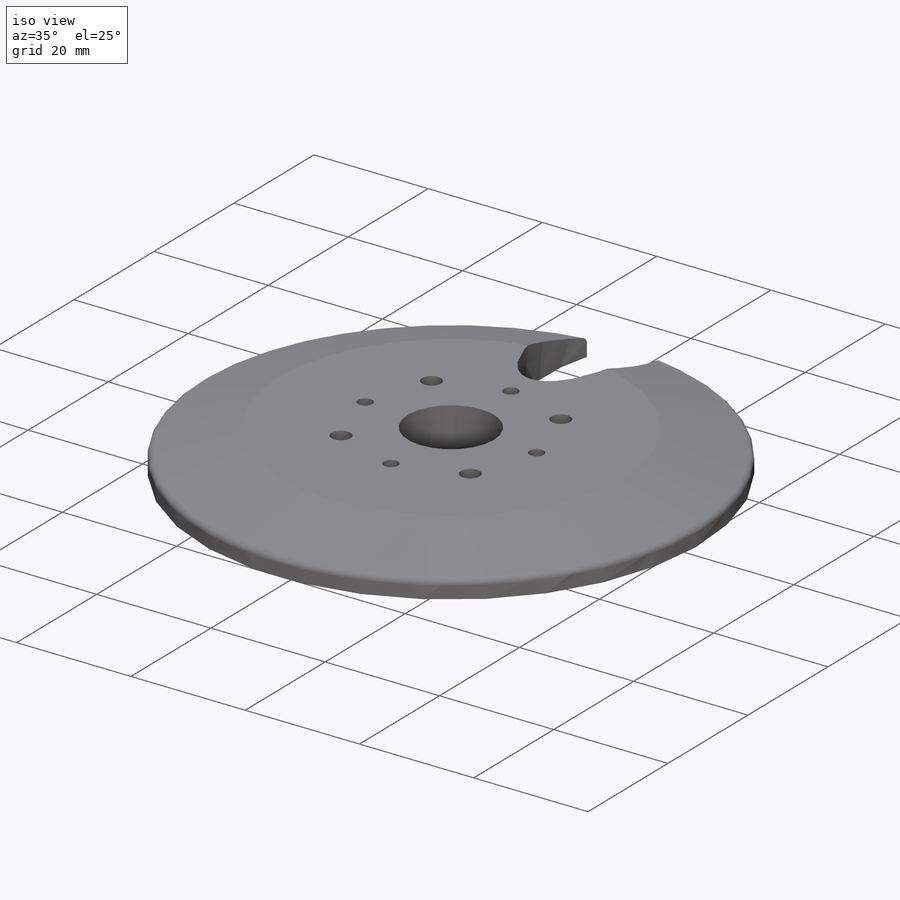
[diagram: iso view]
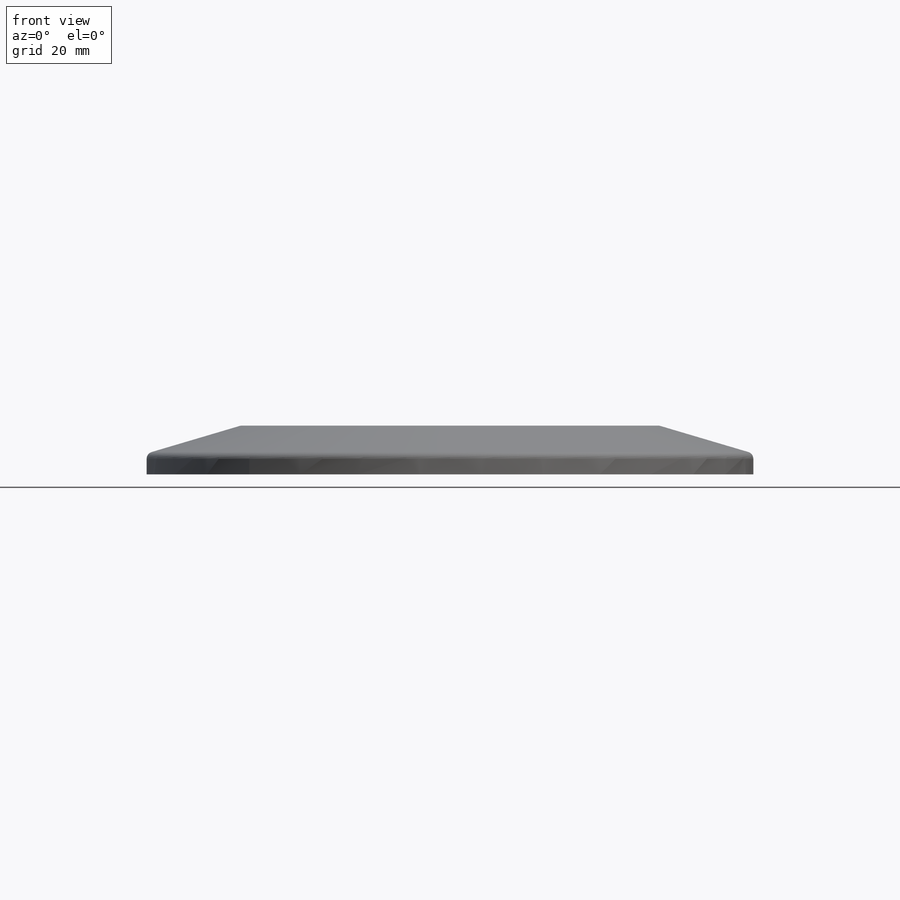
[diagram: front view]
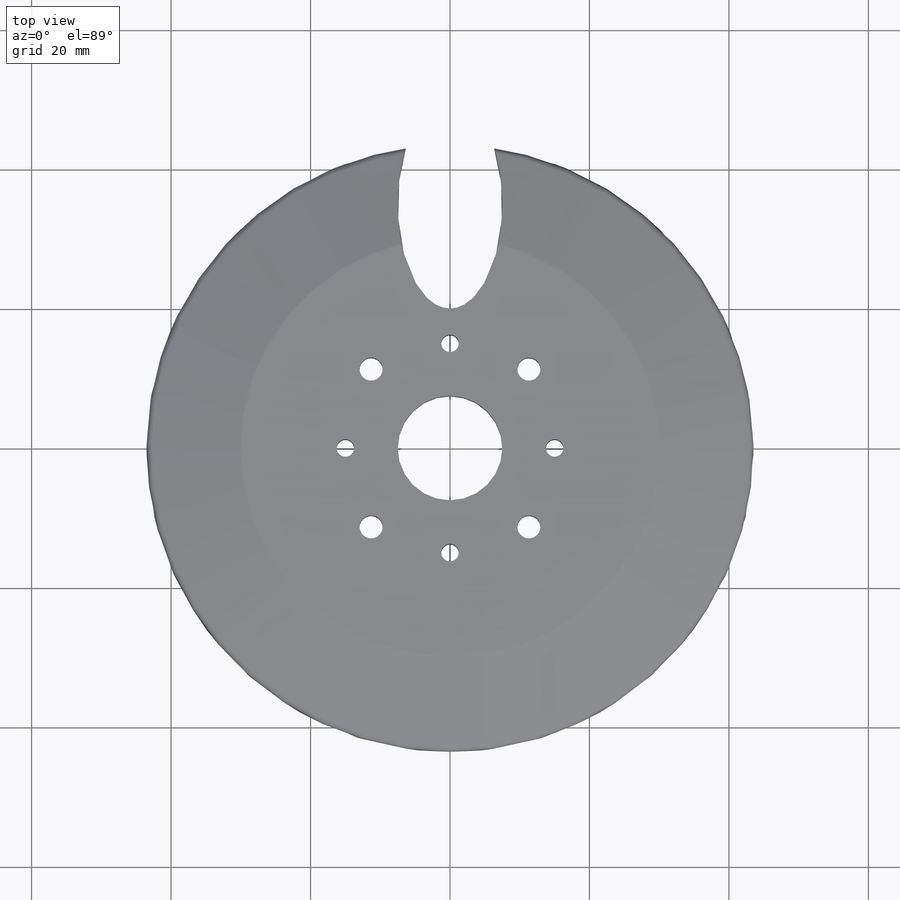
[diagram: top view]
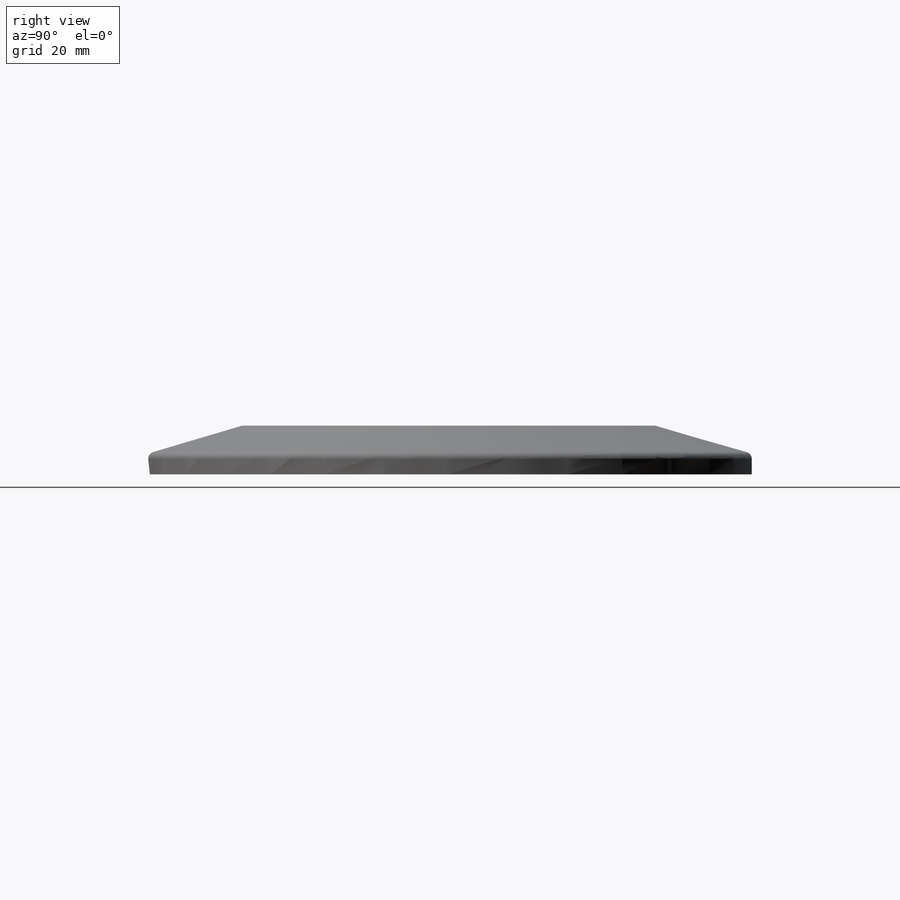
[diagram: right view]
SOLIDWORKS PART (.sldprt)
format: sldprt  version: not decoded by parser v0  size: 357,376 bytes
history: native  units: mm
features: sketch x9, thread x8, cut_extrude x2, hole x2, material x1, revolve x1, fillet x1 (+11 scaffold rows collapsed)
feature tree (35):
  scaffold x11  (default folders/planes/origin — collapsed)
  material  "3.1355 (EN-AW 2024)"
  sketch  "Эскиз1"  dims[D1=43.5mm D2=3.0mm D3=30.0mm D4=7.0mm]
  revolve  "Повернуть1"  Angle=360deg
  sketch  "Эскиз2"  dims[D1=15.0mm]
  cut_extrude  "Вырез-Вытянуть1"  [1 undecoded]
  sketch  "Эскиз3"  dims[D1=20.0mm D2=7.5mm D3=15.0mm]
  cut_extrude  "Вырез-Вытянуть2"  [1 undecoded]
  sketch  "Эскиз4"  dims[D1=30.0mm]
  hole  "Отверстие обработанное метчиком M3x0.51"  [1 undecoded]
  sketch  "Эскиз6"
  sketch  "Эскиз5"  dims[hole-wizard template sketch: 60 standard entries collapsed; hole parameters kept: c18.Глубина проходного сверла=7.0mm]
  thread  "Отверстие резьбы1"  Diameter=3mm  [1 undecoded]
  thread  "Отверстие резьбы2"  Diameter=3mm  [1 undecoded]
  thread  "Отверстие резьбы3"  Diameter=3mm  [1 undecoded]
  thread  "Отверстие резьбы4"  Diameter=3mm  [1 undecoded]
  sketch  "Эскиз7"  dims[c1.D1=32.0mm c1.D2=16.0mm c2.D2=45.0deg c2.D3=4.0]
  hole  "Отверстие обработанное метчиком M4x0.71"  [1 undecoded]
  sketch  "Эскиз9"
  sketch  "Эскиз8"  dims[hole-wizard template sketch: 60 standard entries collapsed; hole parameters kept: c18.Глубина проходного сверла=7.0mm]
  thread  "Отверстие резьбы5"  Diameter=4mm  [1 undecoded]
  thread  "Отверстие резьбы6"  Diameter=4mm  [1 undecoded]
  thread  "Отверстие резьбы7"  Diameter=4mm  [1 undecoded]
  thread  "Отверстие резьбы8"  Diameter=4mm  [1 undecoded]
  fillet  "Скругление1"  Radius=1mm
decode coverage: 17 of 23 modeling features carry decoded parameters
note: ~ marks probable driven/reference dimensions
note: 12 parameter values undecoded
summary: no parameter record found for 4 features
note: suppression state not decoded; provenance and decode notes live in map.json
